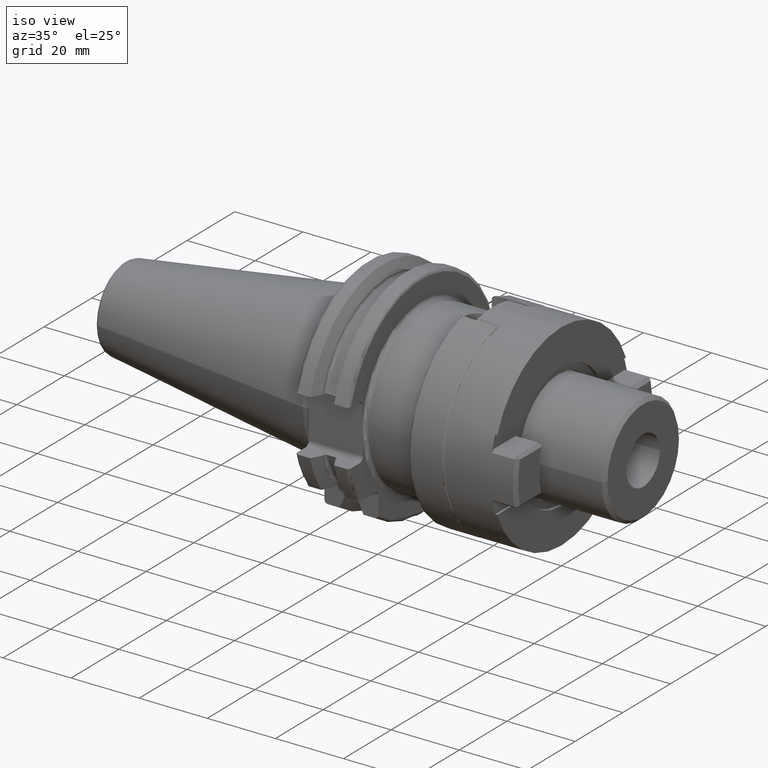
[diagram: clean part render]
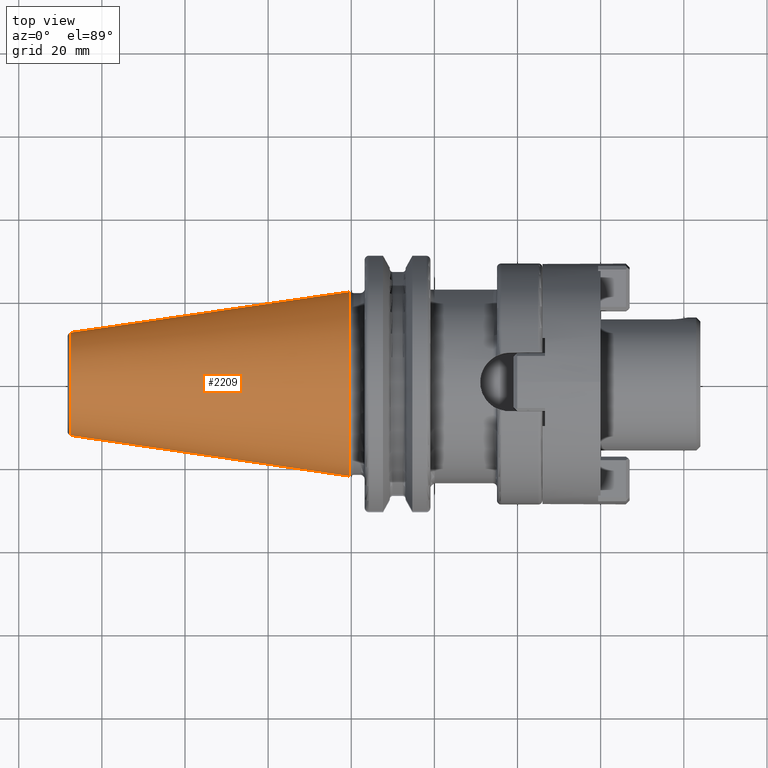
[diagram: tour spotlight — one face highlighted and labeled with its STEP entity id]
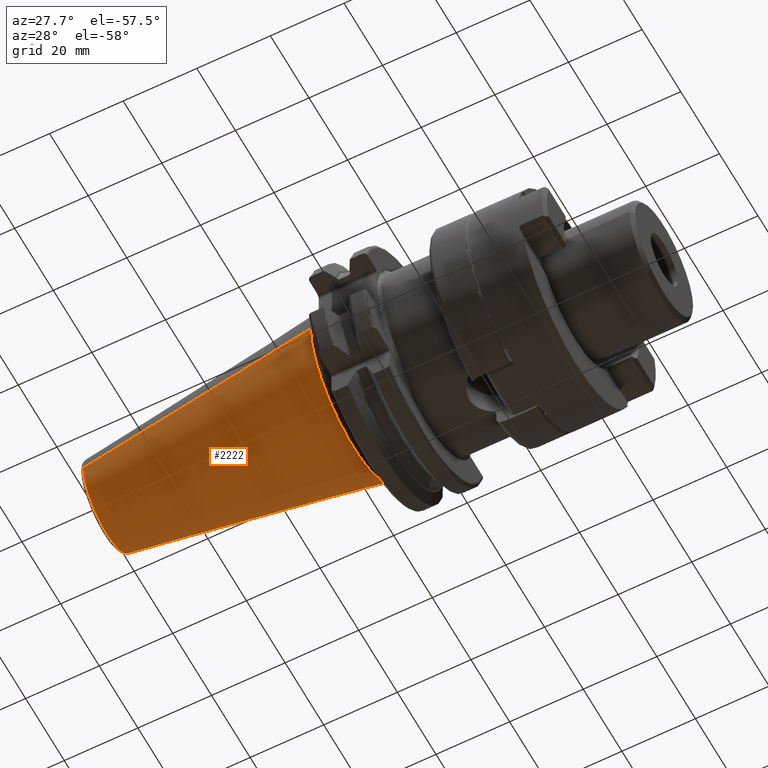
[diagram: tour spotlight — one face highlighted and labeled with its STEP entity id]
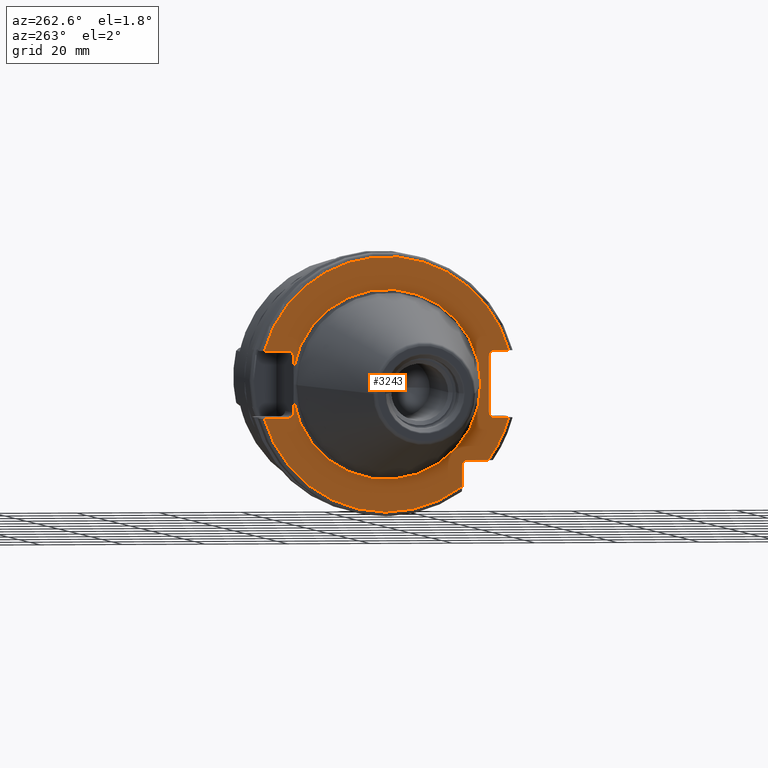
[diagram: tour spotlight — one face highlighted and labeled with its STEP entity id]
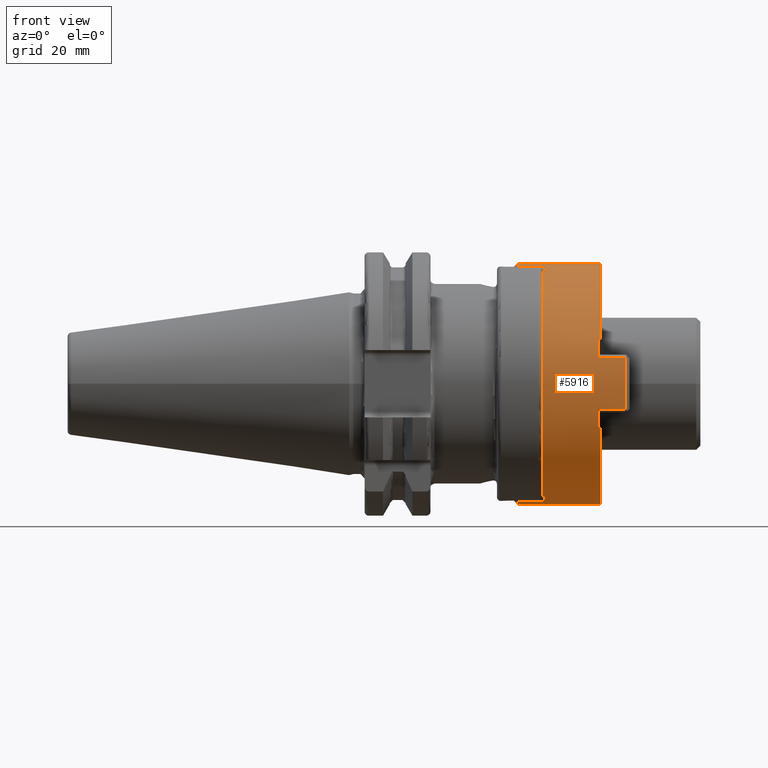
[diagram: tour spotlight — one face highlighted and labeled with its STEP entity id]
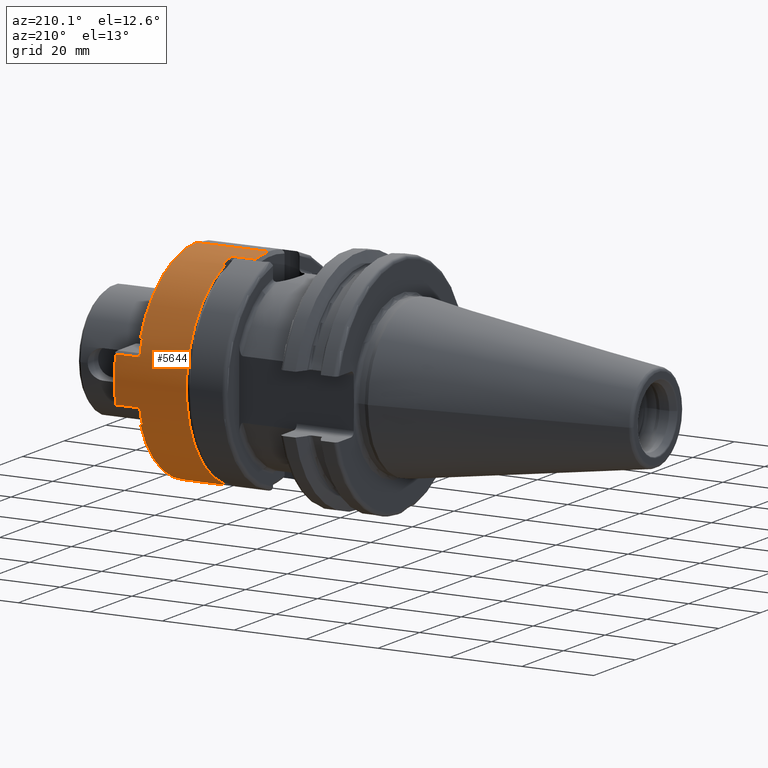
[diagram: tour spotlight — one face highlighted and labeled with its STEP entity id]
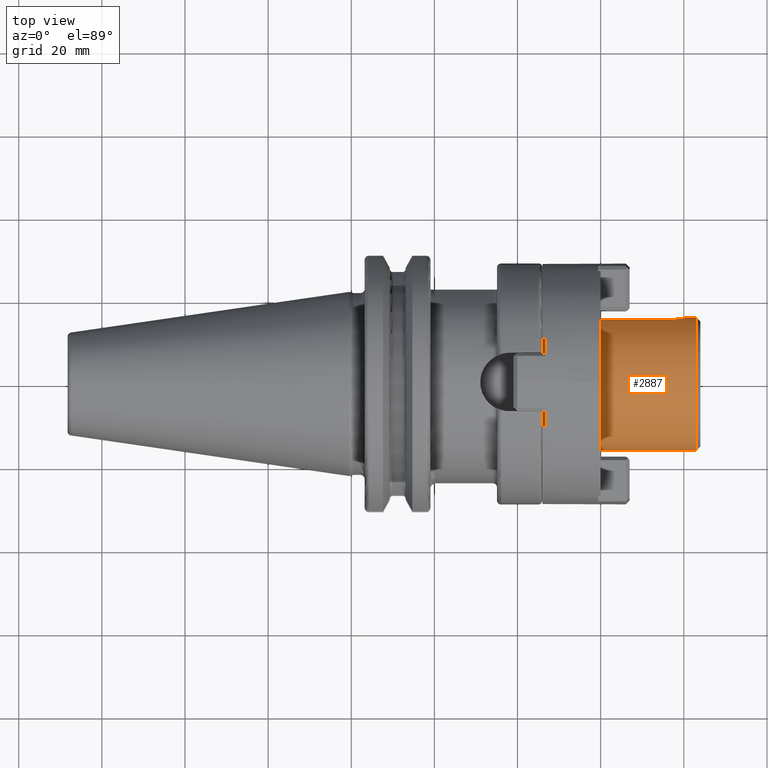
[diagram: tour spotlight — one face highlighted and labeled with its STEP entity id]
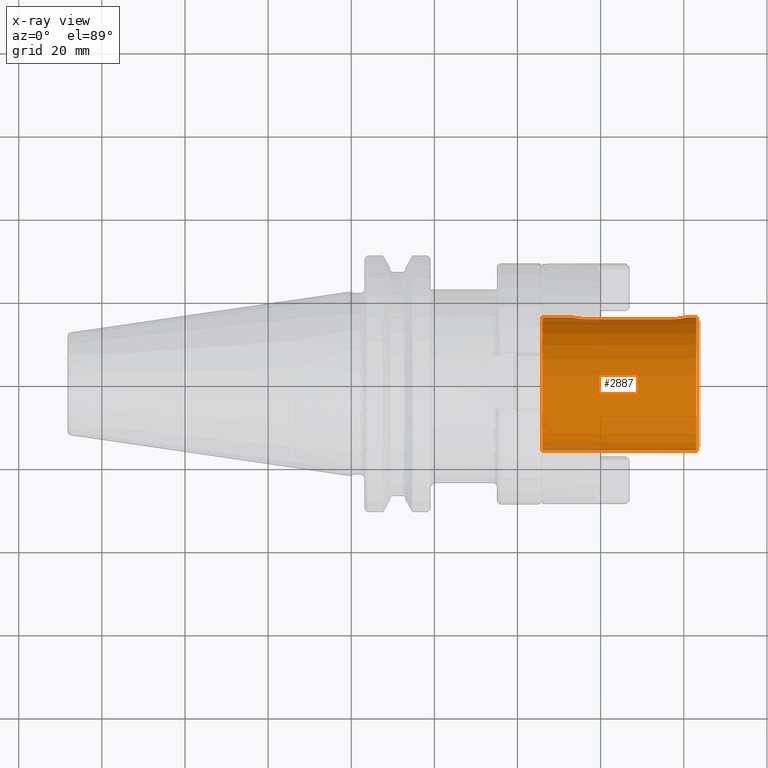
[diagram: x-ray of the same camera — body ghosted, this tour face saturated]
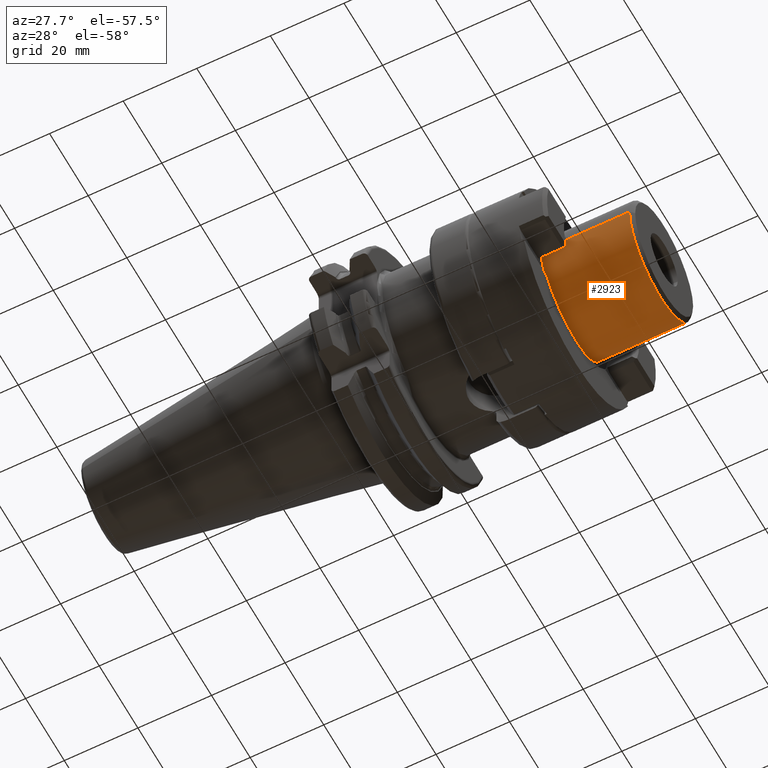
[diagram: tour spotlight — one face highlighted and labeled with its STEP entity id]
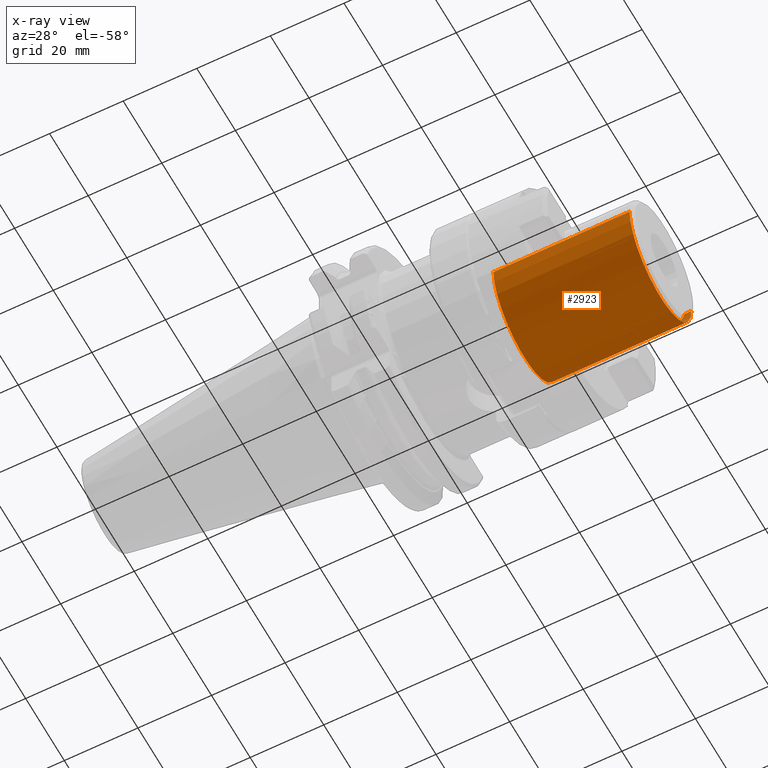
[diagram: x-ray of the same camera — body ghosted, this tour face saturated]
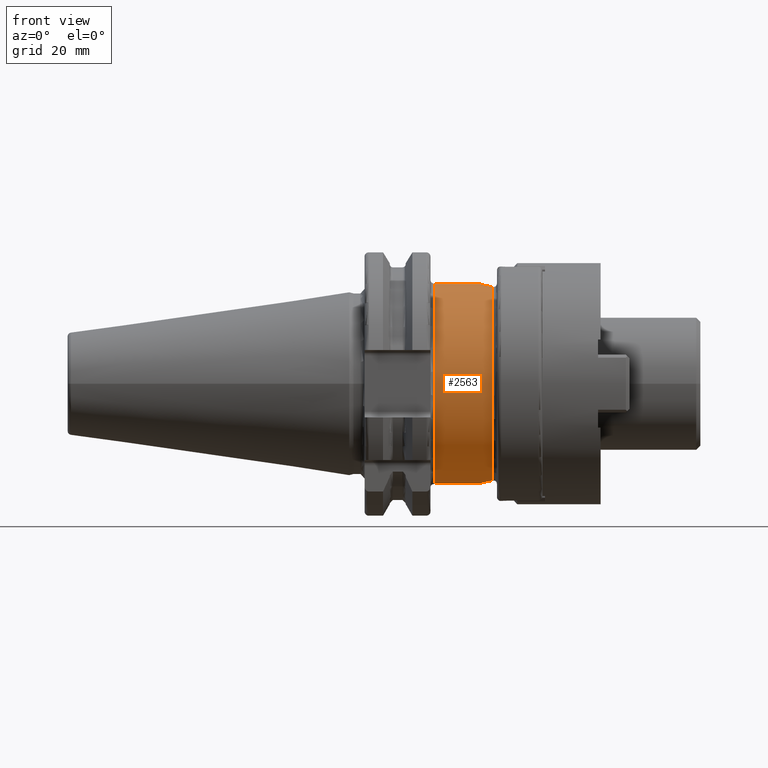
[diagram: tour spotlight — one face highlighted and labeled with its STEP entity id]
A machine part: a face-by-face anatomy tour. The part has 197 B-rep faces; the first image is the clean iso view, then the 8 largest visible faces are spotlighted one at a time (largest first), each with its STEP entity span.

Face 1 — top view, entity #2209. In plain terms, the highlighted conical surface has half-angle 8.298 deg.
Definition (entity closure, byte-faithful):
#37=CARTESIAN_POINT('',(-6.743710273571E1,0.E0,0.E0));
#38=DIRECTION('',(1.E0,0.E0,0.E0));
#39=DIRECTION('',(0.E0,1.E0,0.E0));
#40=AXIS2_PLACEMENT_3D('',#37,#38,#39);
#42=CARTESIAN_POINT('',(-4.896823332305E-1,0.E0,0.E0));
#43=DIRECTION('',(1.E0,0.E0,0.E0));
#44=DIRECTION('',(0.E0,1.E0,0.E0));
#45=AXIS2_PLACEMENT_3D('',#42,#43,#44);
#47=DIRECTION('',(-9.895312636440E-1,-1.443186691705E-1,0.E0));
#48=VECTOR('',#47,6.765568998391E1);
#49=CARTESIAN_POINT('',(-4.896823332305E-1,2.215358204157E1,0.E0));
#50=LINE('',#49,#48);
#51=DIRECTION('',(-9.895312636440E-1,1.443186691705E-1,0.E0));
#52=VECTOR('',#51,6.765568998391E1);
#53=CARTESIAN_POINT('',(-4.896823332305E-1,-2.215358204157E1,0.E0));
#54=LINE('',#53,#52);
#1798=CARTESIAN_POINT('',(-6.743710273571E1,1.238960290128E1,0.E0));
#1800=VERTEX_POINT('',#1798);
#1802=CARTESIAN_POINT('',(-6.743710273571E1,-1.238960290128E1,0.E0));
#1804=VERTEX_POINT('',#1802);
#1866=CARTESIAN_POINT('',(-4.896823332305E-1,2.215358204157E1,0.E0));
#1867=VERTEX_POINT('',#1866);
#1868=CARTESIAN_POINT('',(-4.896823332305E-1,-2.215358204157E1,0.E0));
#1869=VERTEX_POINT('',#1868);
#2195=CARTESIAN_POINT('',(-3.396339253447E1,0.E0,0.E0));
#2196=DIRECTION('',(1.E0,0.E0,0.E0));
#2197=DIRECTION('',(0.E0,-1.E0,0.E0));
#2198=AXIS2_PLACEMENT_3D('',#2195,#2196,#2197);
#2199=CONICAL_SURFACE('',#2198,1.727159247143E1,8.297826828206E0);
#2201=ORIENTED_EDGE('',*,*,#2200,.F.);
#2203=ORIENTED_EDGE('',*,*,#2202,.T.);
#2205=ORIENTED_EDGE('',*,*,#2204,.T.);
#2206=ORIENTED_EDGE('',*,*,#2188,.F.);
#2207=EDGE_LOOP('',(#2201,#2203,#2205,#2206));
#2208=FACE_OUTER_BOUND('',#2207,.F.);
#2209=ADVANCED_FACE('',(#2208),#2199,.T.);
#41=CIRCLE('',#40,1.238960290128E1);
#46=CIRCLE('',#45,2.215358204157E1);
#2188=EDGE_CURVE('',#1800,#1804,#41,.T.);
#2200=EDGE_CURVE('',#1867,#1800,#50,.T.);
#2202=EDGE_CURVE('',#1867,#1869,#46,.T.);
#2204=EDGE_CURVE('',#1869,#1804,#54,.T.);

Face 2 — auxiliary view, entity #2222. In plain terms, the highlighted conical surface has half-angle 8.298 deg.
Definition (entity closure, byte-faithful):
#32=CARTESIAN_POINT('',(-6.743710273571E1,0.E0,0.E0));
#33=DIRECTION('',(-1.E0,0.E0,0.E0));
#34=DIRECTION('',(0.E0,1.E0,0.E0));
#35=AXIS2_PLACEMENT_3D('',#32,#33,#34);
#47=DIRECTION('',(-9.895312636440E-1,-1.443186691705E-1,0.E0));
#48=VECTOR('',#47,6.765568998391E1);
#49=CARTESIAN_POINT('',(-4.896823332305E-1,2.215358204157E1,0.E0));
#50=LINE('',#49,#48);
#51=DIRECTION('',(-9.895312636440E-1,1.443186691705E-1,0.E0));
#52=VECTOR('',#51,6.765568998391E1);
#53=CARTESIAN_POINT('',(-4.896823332305E-1,-2.215358204157E1,0.E0));
#54=LINE('',#53,#52);
#55=CARTESIAN_POINT('',(-4.896823332305E-1,0.E0,0.E0));
#56=DIRECTION('',(-1.E0,0.E0,0.E0));
#57=DIRECTION('',(0.E0,1.E0,0.E0));
#58=AXIS2_PLACEMENT_3D('',#55,#56,#57);
#1798=CARTESIAN_POINT('',(-6.743710273571E1,1.238960290128E1,0.E0));
#1800=VERTEX_POINT('',#1798);
#1802=CARTESIAN_POINT('',(-6.743710273571E1,-1.238960290128E1,0.E0));
#1804=VERTEX_POINT('',#1802);
#1866=CARTESIAN_POINT('',(-4.896823332305E-1,2.215358204157E1,0.E0));
#1867=VERTEX_POINT('',#1866);
#1868=CARTESIAN_POINT('',(-4.896823332305E-1,-2.215358204157E1,0.E0));
#1869=VERTEX_POINT('',#1868);
#2210=CARTESIAN_POINT('',(-3.396339253447E1,0.E0,0.E0));
#2211=DIRECTION('',(1.E0,0.E0,0.E0));
#2212=DIRECTION('',(0.E0,-1.E0,0.E0));
#2213=AXIS2_PLACEMENT_3D('',#2210,#2211,#2212);
#2214=CONICAL_SURFACE('',#2213,1.727159247143E1,8.297826828206E0);
#2215=ORIENTED_EDGE('',*,*,#2200,.T.);
#2216=ORIENTED_EDGE('',*,*,#2177,.T.);
#2217=ORIENTED_EDGE('',*,*,#2204,.F.);
#2219=ORIENTED_EDGE('',*,*,#2218,.F.);
#2220=EDGE_LOOP('',(#2215,#2216,#2217,#2219));
#2221=FACE_OUTER_BOUND('',#2220,.F.);
#2222=ADVANCED_FACE('',(#2221),#2214,.T.);
#36=CIRCLE('',#35,1.238960290128E1);
#59=CIRCLE('',#58,2.215358204157E1);
#2177=EDGE_CURVE('',#1800,#1804,#36,.T.);
#2200=EDGE_CURVE('',#1867,#1800,#50,.T.);
#2204=EDGE_CURVE('',#1869,#1804,#54,.T.);
#2218=EDGE_CURVE('',#1867,#1869,#59,.T.);

Face 3 — auxiliary view, entity #3243. In plain terms, the highlighted planar face has unit normal (1, 0, 0).
Definition (entity closure, byte-faithful):
#105=CARTESIAN_POINT('',(3.2E0,2.255E1,-3.842281223440E0));
#117=CARTESIAN_POINT('',(3.2E0,0.E0,0.E0));
#118=DIRECTION('',(-1.E0,0.E0,0.E0));
#119=DIRECTION('',(0.E0,9.857923497268E-1,-1.679685780739E-1));
#120=AXIS2_PLACEMENT_3D('',#117,#118,#119);
#142=CARTESIAN_POINT('',(3.2E0,2.39E1,-6.75E0));
#143=DIRECTION('',(1.E0,0.E0,0.E0));
#144=DIRECTION('',(0.E0,-1.E0,0.E0));
#145=AXIS2_PLACEMENT_3D('',#142,#143,#144);
#199=CARTESIAN_POINT('',(3.2E0,2.39E1,6.75E0));
#200=DIRECTION('',(1.E0,0.E0,0.E0));
#201=DIRECTION('',(0.E0,0.E0,1.E0));
#202=AXIS2_PLACEMENT_3D('',#199,#200,#201);
#244=CARTESIAN_POINT('',(3.2E0,-2.62E1,6.75E0));
#245=DIRECTION('',(1.E0,0.E0,0.E0));
#246=DIRECTION('',(0.E0,1.E0,0.E0));
#247=AXIS2_PLACEMENT_3D('',#244,#245,#246);
#888=CARTESIAN_POINT('',(3.2E0,-2.62E1,-6.75E0));
#889=DIRECTION('',(1.E0,0.E0,0.E0));
#890=DIRECTION('',(0.E0,0.E0,-1.E0));
#891=AXIS2_PLACEMENT_3D('',#888,#889,#890);
#955=DIRECTION('',(0.E0,0.E0,-1.E0));
#956=VECTOR('',#955,2.907718776560E0);
#957=CARTESIAN_POINT('',(3.2E0,2.255E1,6.75E0));
#958=LINE('',#957,#956);
#959=DIRECTION('',(0.E0,-1.E0,0.E0));
#960=VECTOR('',#959,5.776950757280E0);
#961=CARTESIAN_POINT('',(3.2E0,2.967695075728E1,8.1E0));
#962=LINE('',#961,#960);
#963=CARTESIAN_POINT('',(3.2E0,0.E0,0.E0));
#964=DIRECTION('',(1.E0,0.E0,0.E0));
#965=DIRECTION('',(0.E0,9.647119303464E-1,2.633075985372E-1));
#966=AXIS2_PLACEMENT_3D('',#963,#964,#965);
#968=DIRECTION('',(0.E0,1.E0,0.E0));
#969=VECTOR('',#968,3.476950757280E0);
#970=CARTESIAN_POINT('',(3.2E0,-2.967695075728E1,8.1E0));
#971=LINE('',#970,#969);
#972=DIRECTION('',(0.E0,0.E0,1.E0));
#973=VECTOR('',#972,1.35E1);
#974=CARTESIAN_POINT('',(3.2E0,-2.485E1,-6.75E0));
#975=LINE('',#974,#973);
#976=DIRECTION('',(0.E0,1.E0,0.E0));
#977=VECTOR('',#976,3.476950757280E0);
#978=CARTESIAN_POINT('',(3.2E0,-2.967695075728E1,-8.1E0));
#979=LINE('',#978,#977);
#980=CARTESIAN_POINT('',(3.2E0,0.E0,0.E0));
#981=DIRECTION('',(-1.E0,0.E0,0.E0));
#982=DIRECTION('',(0.E0,-8.026089992512E-1,-5.965054855750E-1));
#983=AXIS2_PLACEMENT_3D('',#980,#981,#982);
#985=DIRECTION('',(0.E0,-1.E0,0.E0));
#986=VECTOR('',#985,4.990259339464E0);
#987=CARTESIAN_POINT('',(3.2E0,-1.97E1,-1.835E1));
#988=LINE('',#987,#986);
#989=DIRECTION('',(0.E0,0.E0,1.E0));
#990=VECTOR('',#989,4.990259339464E0);
#991=CARTESIAN_POINT('',(3.2E0,-1.835E1,-2.469025933946E1));
#992=LINE('',#991,#990);
#993=CARTESIAN_POINT('',(3.2E0,0.E0,0.E0));
#994=DIRECTION('',(-1.E0,0.E0,0.E0));
#995=DIRECTION('',(0.E0,9.647119303464E-1,-2.633075985372E-1));
#996=AXIS2_PLACEMENT_3D('',#993,#994,#995);
#998=DIRECTION('',(0.E0,-1.E0,0.E0));
#999=VECTOR('',#998,5.776950757280E0);
#1000=CARTESIAN_POINT('',(3.2E0,2.967695075728E1,-8.1E0));
#1001=LINE('',#1000,#999);
#1002=DIRECTION('',(0.E0,0.E0,-1.E0));
#1003=VECTOR('',#1002,2.907718776560E0);
#1004=CARTESIAN_POINT('',(3.2E0,2.255E1,-3.842281223440E0));
#1005=LINE('',#1004,#1003);
#1015=CARTESIAN_POINT('',(3.2E0,2.967695075728E1,8.1E0));
#1022=CARTESIAN_POINT('',(3.2E0,-2.967695075728E1,8.1E0));
#1442=CARTESIAN_POINT('',(3.2E0,2.967695075728E1,-8.1E0));
#1478=CARTESIAN_POINT('',(3.2E0,-2.967695075728E1,-8.1E0));
#1505=CARTESIAN_POINT('',(3.2E0,-1.97E1,-1.97E1));
#1506=DIRECTION('',(1.E0,0.E0,0.E0));
#1507=DIRECTION('',(0.E0,1.E0,0.E0));
#1508=AXIS2_PLACEMENT_3D('',#1505,#1506,#1507);
#1576=CARTESIAN_POINT('',(3.2E0,2.255E1,3.842281223440E0));
#1587=CARTESIAN_POINT('',(3.2E0,0.E0,0.E0));
#1588=DIRECTION('',(1.E0,0.E0,0.E0));
#1589=DIRECTION('',(0.E0,9.857923497268E-1,1.679685780739E-1));
#1590=AXIS2_PLACEMENT_3D('',#1587,#1588,#1589);
#1810=CARTESIAN_POINT('',(3.2E0,-2.2875E1,0.E0));
#1812=VERTEX_POINT('',#1810);
#1952=VERTEX_POINT('',#1576);
#1954=VERTEX_POINT('',#105);
#1957=VERTEX_POINT('',#1015);
#1958=VERTEX_POINT('',#1022);
#1961=VERTEX_POINT('',#1442);
#1962=VERTEX_POINT('',#1478);
#1977=CARTESIAN_POINT('',(3.2E0,-1.835E1,-2.469025933946E1));
#1978=VERTEX_POINT('',#1977);
#1980=CARTESIAN_POINT('',(3.2E0,2.39E1,-8.1E0));
#1982=VERTEX_POINT('',#1980);
#1984=CARTESIAN_POINT('',(3.2E0,2.39E1,8.1E0));
#1986=VERTEX_POINT('',#1984);
#1988=CARTESIAN_POINT('',(3.2E0,-2.485E1,-6.75E0));
#1990=VERTEX_POINT('',#1988);
#1992=CARTESIAN_POINT('',(3.2E0,-2.62E1,-8.1E0));
#1994=VERTEX_POINT('',#1992);
#1996=CARTESIAN_POINT('',(3.2E0,-2.62E1,8.1E0));
#1998=VERTEX_POINT('',#1996);
#2000=CARTESIAN_POINT('',(3.2E0,-2.485E1,6.75E0));
#2002=VERTEX_POINT('',#2000);
#2009=CARTESIAN_POINT('',(3.2E0,2.255E1,6.75E0));
#2010=VERTEX_POINT('',#2009);
#2011=CARTESIAN_POINT('',(3.2E0,2.255E1,-6.75E0));
#2012=VERTEX_POINT('',#2011);
#2013=CARTESIAN_POINT('',(3.2E0,-1.97E1,-1.835E1));
#2014=CARTESIAN_POINT('',(3.2E0,-2.469025933946E1,-1.835E1));
#2015=VERTEX_POINT('',#2013);
#2016=VERTEX_POINT('',#2014);
#2017=CARTESIAN_POINT('',(3.2E0,-1.835E1,-1.97E1));
#2018=VERTEX_POINT('',#2017);
#3210=CARTESIAN_POINT('',(3.2E0,0.E0,0.E0));
#3211=DIRECTION('',(1.E0,0.E0,0.E0));
#3212=DIRECTION('',(0.E0,-1.E0,0.E0));
#3213=AXIS2_PLACEMENT_3D('',#3210,#3211,#3212);
#3214=PLANE('',#3213);
#3215=ORIENTED_EDGE('',*,*,#2323,.F.);
#3216=ORIENTED_EDGE('',*,*,#2409,.F.);
#3217=ORIENTED_EDGE('',*,*,#2444,.F.);
#3219=ORIENTED_EDGE('',*,*,#3218,.T.);
#3220=ORIENTED_EDGE('',*,*,#2470,.T.);
#3221=ORIENTED_EDGE('',*,*,#2506,.F.);
#3222=ORIENTED_EDGE('',*,*,#2522,.F.);
#3223=ORIENTED_EDGE('',*,*,#3109,.F.);
#3224=ORIENTED_EDGE('',*,*,#3143,.F.);
#3226=ORIENTED_EDGE('',*,*,#3225,.F.);
#3228=ORIENTED_EDGE('',*,*,#3227,.F.);
#3230=ORIENTED_EDGE('',*,*,#3229,.F.);
#3232=ORIENTED_EDGE('',*,*,#3231,.F.);
#3234=ORIENTED_EDGE('',*,*,#3233,.F.);
#3235=ORIENTED_EDGE('',*,*,#3183,.T.);
#3236=ORIENTED_EDGE('',*,*,#2341,.F.);
#3237=ORIENTED_EDGE('',*,*,#2328,.F.);
#3238=ORIENTED_EDGE('',*,*,#2291,.T.);
#3240=ORIENTED_EDGE('',*,*,#3239,.F.);
#3241=EDGE_LOOP('',(#3215,#3216,#3217,#3219,#3220,#3221,#3222,#3223,#3224,#3226,
#3228,#3230,#3232,#3234,#3235,#3236,#3237,#3238,#3240));
#3242=FACE_OUTER_BOUND('',#3241,.F.);
#3243=ADVANCED_FACE('',(#3242),#3214,.F.);
#121=CIRCLE('',#120,2.2875E1);
#146=CIRCLE('',#145,1.35E0);
#203=CIRCLE('',#202,1.35E0);
#248=CIRCLE('',#247,1.35E0);
#892=CIRCLE('',#891,1.35E0);
#967=CIRCLE('',#966,3.07625E1);
#984=CIRCLE('',#983,3.07625E1);
#997=CIRCLE('',#996,3.07625E1);
#1509=CIRCLE('',#1508,1.35E0);
#1591=CIRCLE('',#1590,2.2875E1);
#2291=EDGE_CURVE('',#1954,#1812,#121,.T.);
#2323=EDGE_CURVE('',#2010,#1952,#958,.T.);
#2328=EDGE_CURVE('',#1954,#2012,#1005,.T.);
#2341=EDGE_CURVE('',#2012,#1982,#146,.T.);
#2409=EDGE_CURVE('',#1986,#2010,#203,.T.);
#2444=EDGE_CURVE('',#1957,#1986,#962,.T.);
#2470=EDGE_CURVE('',#1958,#1998,#971,.T.);
#2506=EDGE_CURVE('',#2002,#1998,#248,.T.);
#2522=EDGE_CURVE('',#1990,#2002,#975,.T.);
#3109=EDGE_CURVE('',#1994,#1990,#892,.T.);
#3143=EDGE_CURVE('',#1962,#1994,#979,.T.);
#3183=EDGE_CURVE('',#1961,#1982,#1001,.T.);
#3218=EDGE_CURVE('',#1957,#1958,#967,.T.);
#3225=EDGE_CURVE('',#2016,#1962,#984,.T.);
#3227=EDGE_CURVE('',#2015,#2016,#988,.T.);
#3229=EDGE_CURVE('',#2018,#2015,#1509,.T.);
#3231=EDGE_CURVE('',#1978,#2018,#992,.T.);
#3233=EDGE_CURVE('',#1961,#1978,#997,.T.);
#3239=EDGE_CURVE('',#1952,#1812,#1591,.T.);

Face 4 — front view, entity #5916. In plain terms, the highlighted cylindrical surface (partial cylindrical patch) has radius 29 mm, axis along (1, 0, 0).
Definition (entity closure, byte-faithful):
#4356=DIRECTION('',(1.342815094146E-12,1.E0,-1.127559325998E-12));
#4357=VECTOR('',#4356,2.006250000003E1);
#4358=CARTESIAN_POINT('',(2.899999999997E1,-6.062500000027E0,
2.262521045359E-11));
#4359=LINE('',#4358,#4357);
#4597=DIRECTION('',(6.185587793484E-14,1.E0,0.E0));
#4598=VECTOR('',#4597,6.6625E0);
#4599=CARTESIAN_POINT('',(-2.831474527892E1,-6.0625E0,6.266992882562E0));
#4600=LINE('',#4599,#4598);
#4601=CARTESIAN_POINT('',(0.E0,-6.0625E0,0.E0));
#4602=DIRECTION('',(0.E0,-1.E0,0.E0));
#4603=DIRECTION('',(-9.763705268592E-1,0.E0,2.161032028470E-1));
#4604=AXIS2_PLACEMENT_3D('',#4601,#4602,#4603);
#4606=DIRECTION('',(-1.319971477221E-12,1.E0,1.457055303772E-12));
#4607=VECTOR('',#4606,2.006250000003E1);
#4608=CARTESIAN_POINT('',(-2.899999999997E1,-6.062500000026E0,
-2.923217120667E-11));
#4609=LINE('',#4608,#4607);
#4610=CARTESIAN_POINT('',(0.E0,1.4E1,0.E0));
#4611=DIRECTION('',(0.E0,1.E0,0.E0));
#4612=DIRECTION('',(-1.E0,0.E0,0.E0));
#4613=AXIS2_PLACEMENT_3D('',#4610,#4611,#4612);
#4615=DIRECTION('',(0.E0,1.E0,0.E0));
#4616=VECTOR('',#4615,6.E-1);
#4617=CARTESIAN_POINT('',(-1.05725E1,1.34E1,2.700411531137E1));
#4618=LINE('',#4617,#4616);
#4619=DIRECTION('',(-2.286429389008E-9,-1.E0,1.033025871003E-8));
#4620=VECTOR('',#4619,6.662499859018E0);
#4621=CARTESIAN_POINT('',(-6.266992867329E0,2.006249985902E1,2.831474521009E1));
#4622=LINE('',#4621,#4620);
#4623=DIRECTION('',(2.256645089311E-9,9.999999999959E-1,-2.869937073831E-6));
#4624=VECTOR('',#4623,6.662519618770E0);
#4625=CARTESIAN_POINT('',(6.266992882562E0,1.34E1,2.831474527892E1));
#4626=LINE('',#4625,#4624);
#4627=DIRECTION('',(0.E0,1.E0,-1.184237892934E-14));
#4628=VECTOR('',#4627,6.E-1);
#4629=CARTESIAN_POINT('',(1.05725E1,1.34E1,2.700411531137E1));
#4630=LINE('',#4629,#4628);
#4631=CARTESIAN_POINT('',(0.E0,1.4E1,0.E0));
#4632=DIRECTION('',(0.E0,1.E0,0.E0));
#4633=DIRECTION('',(3.645689655172E-1,0.E0,9.311763900474E-1));
#4634=AXIS2_PLACEMENT_3D('',#4631,#4632,#4633);
#4636=CARTESIAN_POINT('',(0.E0,-6.0625E0,0.E0));
#4637=DIRECTION('',(0.E0,-1.E0,0.E0));
#4638=DIRECTION('',(1.E0,0.E0,0.E0));
#4639=AXIS2_PLACEMENT_3D('',#4636,#4637,#4638);
#4641=DIRECTION('',(0.E0,-1.E0,0.E0));
#4642=VECTOR('',#4641,6.6625E0);
#4643=CARTESIAN_POINT('',(2.831474527892E1,6.E-1,6.266992882562E0));
#4644=LINE('',#4643,#4642);
#4645=DIRECTION('',(0.E0,1.E0,0.E0));
#4646=VECTOR('',#4645,6.E-1);
#4647=CARTESIAN_POINT('',(2.700411531137E1,0.E0,1.05725E1));
#4648=LINE('',#4647,#4646);
#4649=CARTESIAN_POINT('',(0.E0,0.E0,0.E0));
#4650=DIRECTION('',(0.E0,-1.E0,0.E0));
#4651=DIRECTION('',(9.311763900474E-1,0.E0,3.645689655172E-1));
#4652=AXIS2_PLACEMENT_3D('',#4649,#4650,#4651);
#4654=DIRECTION('',(-1.184237892934E-14,1.E0,0.E0));
#4655=VECTOR('',#4654,6.E-1);
#4656=CARTESIAN_POINT('',(-2.700411531137E1,0.E0,1.05725E1));
#4657=LINE('',#4656,#4655);
#4839=CARTESIAN_POINT('',(0.E0,1.34E1,0.E0));
#4840=DIRECTION('',(0.E0,-1.E0,0.E0));
#4841=DIRECTION('',(3.645689655172E-1,0.E0,9.311763900474E-1));
#4842=AXIS2_PLACEMENT_3D('',#4839,#4840,#4841);
#4985=CARTESIAN_POINT('',(0.E0,1.34E1,0.E0));
#4986=DIRECTION('',(0.E0,-1.E0,0.E0));
#4987=DIRECTION('',(-2.161032028470E-1,0.E0,9.763705268592E-1));
#4988=AXIS2_PLACEMENT_3D('',#4985,#4986,#4987);
#5081=CARTESIAN_POINT('',(7.102470092939E-6,2.006250050754E1,
-2.878763164205E-5));
#5082=DIRECTION('',(0.E0,-1.E0,0.E0));
#5083=DIRECTION('',(2.161027599205E-1,0.E0,9.763706248934E-1));
#5084=AXIS2_PLACEMENT_3D('',#5081,#5082,#5083);
#5198=CARTESIAN_POINT('',(0.E0,6.E-1,0.E0));
#5199=DIRECTION('',(0.E0,1.E0,0.E0));
#5200=DIRECTION('',(9.311763900474E-1,0.E0,3.645689655172E-1));
#5201=AXIS2_PLACEMENT_3D('',#5198,#5199,#5200);
#5216=CARTESIAN_POINT('',(0.E0,6.E-1,0.E0));
#5217=DIRECTION('',(0.E0,1.E0,0.E0));
#5218=DIRECTION('',(-9.763705268592E-1,0.E0,2.161032028470E-1));
#5219=AXIS2_PLACEMENT_3D('',#5216,#5217,#5218);
#5264=CARTESIAN_POINT('',(2.9E1,1.4E1,0.E0));
#5266=VERTEX_POINT('',#5264);
#5269=CARTESIAN_POINT('',(-2.9E1,1.4E1,0.E0));
#5271=VERTEX_POINT('',#5269);
#5272=CARTESIAN_POINT('',(1.05725E1,1.4E1,2.700411531137E1));
#5273=VERTEX_POINT('',#5272);
#5274=CARTESIAN_POINT('',(-1.05725E1,1.4E1,2.700411531137E1));
#5275=VERTEX_POINT('',#5274);
#5300=CARTESIAN_POINT('',(1.05725E1,1.34E1,2.700411531137E1));
#5301=VERTEX_POINT('',#5300);
#5302=CARTESIAN_POINT('',(-1.05725E1,1.34E1,2.700411531137E1));
#5303=VERTEX_POINT('',#5302);
#5312=CARTESIAN_POINT('',(-2.700411531137E1,6.E-1,1.05725E1));
#5314=VERTEX_POINT('',#5312);
#5317=CARTESIAN_POINT('',(2.700411531137E1,6.E-1,1.05725E1));
#5319=VERTEX_POINT('',#5317);
#5320=CARTESIAN_POINT('',(-2.700411531137E1,0.E0,1.05725E1));
#5322=VERTEX_POINT('',#5320);
#5325=CARTESIAN_POINT('',(2.700411531137E1,0.E0,1.05725E1));
#5327=VERTEX_POINT('',#5325);
#5372=CARTESIAN_POINT('',(6.266993344859E0,2.006250050754E1,2.831474736761E1));
#5373=CARTESIAN_POINT('',(-6.266992681481E0,2.006250050754E1,2.831474437042E1));
#5374=VERTEX_POINT('',#5372);
#5375=VERTEX_POINT('',#5373);
#5412=CARTESIAN_POINT('',(6.266992882562E0,1.34E1,2.831474527892E1));
#5413=VERTEX_POINT('',#5412);
#5422=CARTESIAN_POINT('',(-6.266992882562E0,1.34E1,2.831474527892E1));
#5423=VERTEX_POINT('',#5422);
#5437=CARTESIAN_POINT('',(-2.831474527892E1,-6.0625E0,6.266992882562E0));
#5438=CARTESIAN_POINT('',(-2.831474527892E1,6.E-1,6.266992882562E0));
#5439=VERTEX_POINT('',#5437);
#5440=VERTEX_POINT('',#5438);
#5447=CARTESIAN_POINT('',(-2.9E1,-6.0625E0,0.E0));
#5449=VERTEX_POINT('',#5447);
#5471=CARTESIAN_POINT('',(2.831474527892E1,6.E-1,6.266992882562E0));
#5472=CARTESIAN_POINT('',(2.831474527892E1,-6.0625E0,6.266992882562E0));
#5473=VERTEX_POINT('',#5471);
#5474=VERTEX_POINT('',#5472);
#5477=CARTESIAN_POINT('',(2.9E1,-6.0625E0,0.E0));
#5478=VERTEX_POINT('',#5477);
#5873=CARTESIAN_POINT('',(0.E0,-6.9625E0,0.E0));
#5874=DIRECTION('',(0.E0,1.E0,0.E0));
#5875=DIRECTION('',(1.E0,0.E0,0.E0));
#5876=AXIS2_PLACEMENT_3D('',#5873,#5874,#5875);
#5877=CYLINDRICAL_SURFACE('',#5876,2.9E1);
#5878=ORIENTED_EDGE('',*,*,#5866,.F.);
#5879=ORIENTED_EDGE('',*,*,#5585,.T.);
#5880=ORIENTED_EDGE('',*,*,#5640,.T.);
#5882=ORIENTED_EDGE('',*,*,#5881,.T.);
#5884=ORIENTED_EDGE('',*,*,#5883,.F.);
#5886=ORIENTED_EDGE('',*,*,#5885,.F.);
#5888=ORIENTED_EDGE('',*,*,#5887,.F.);
#5890=ORIENTED_EDGE('',*,*,#5889,.F.);
#5892=ORIENTED_EDGE('',*,*,#5891,.F.);
#5894=ORIENTED_EDGE('',*,*,#5893,.F.);
#5896=ORIENTED_EDGE('',*,*,#5895,.T.);
#5898=ORIENTED_EDGE('',*,*,#5897,.T.);
#5899=ORIENTED_EDGE('',*,*,#5620,.F.);
#5901=ORIENTED_EDGE('',*,*,#5900,.T.);
#5903=ORIENTED_EDGE('',*,*,#5902,.F.);
#5905=ORIENTED_EDGE('',*,*,#5904,.F.);
#5907=ORIENTED_EDGE('',*,*,#5906,.F.);
#5909=ORIENTED_EDGE('',*,*,#5908,.T.);
#5911=ORIENTED_EDGE('',*,*,#5910,.T.);
#5913=ORIENTED_EDGE('',*,*,#5912,.F.);
#5914=EDGE_LOOP('',(#5878,#5879,#5880,#5882,#5884,#5886,#5888,#5890,#5892,#5894,
#5896,#5898,#5899,#5901,#5903,#5905,#5907,#5909,#5911,#5913));
#5915=FACE_OUTER_BOUND('',#5914,.F.);
#5916=ADVANCED_FACE('',(#5915),#5877,.T.);
#4605=CIRCLE('',#4604,2.9E1);
#4614=CIRCLE('',#4613,2.9E1);
#4635=CIRCLE('',#4634,2.9E1);
#4640=CIRCLE('',#4639,2.9E1);
#4653=CIRCLE('',#4652,2.9E1);
#4843=CIRCLE('',#4842,2.9E1);
#4989=CIRCLE('',#4988,2.9E1);
#5085=CIRCLE('',#5084,2.900002871178E1);
#5202=CIRCLE('',#5201,2.9E1);
#5220=CIRCLE('',#5219,2.9E1);
#5585=EDGE_CURVE('',#5439,#5449,#4605,.T.);
#5620=EDGE_CURVE('',#5478,#5266,#4359,.T.);
#5640=EDGE_CURVE('',#5449,#5271,#4609,.T.);
#5866=EDGE_CURVE('',#5439,#5440,#4600,.T.);
#5881=EDGE_CURVE('',#5271,#5275,#4614,.T.);
#5883=EDGE_CURVE('',#5303,#5275,#4618,.T.);
#5885=EDGE_CURVE('',#5423,#5303,#4989,.T.);
#5887=EDGE_CURVE('',#5375,#5423,#4622,.T.);
#5889=EDGE_CURVE('',#5374,#5375,#5085,.T.);
#5891=EDGE_CURVE('',#5413,#5374,#4626,.T.);
#5893=EDGE_CURVE('',#5301,#5413,#4843,.T.);
#5895=EDGE_CURVE('',#5301,#5273,#4630,.T.);
#5897=EDGE_CURVE('',#5273,#5266,#4635,.T.);
#5900=EDGE_CURVE('',#5478,#5474,#4640,.T.);
#5902=EDGE_CURVE('',#5473,#5474,#4644,.T.);
#5904=EDGE_CURVE('',#5319,#5473,#5202,.T.);
#5906=EDGE_CURVE('',#5327,#5319,#4648,.T.);
#5908=EDGE_CURVE('',#5327,#5322,#4653,.T.);
#5910=EDGE_CURVE('',#5322,#5314,#4657,.T.);
#5912=EDGE_CURVE('',#5440,#5314,#5220,.T.);

Face 5 — auxiliary view, entity #5644. In plain terms, the highlighted cylindrical surface (partial cylindrical patch) has radius 29 mm, axis along (1, 0, 0).
Definition (entity closure, byte-faithful):
#4325=CARTESIAN_POINT('',(0.E0,-6.0625E0,0.E0));
#4326=DIRECTION('',(0.E0,-1.E0,0.E0));
#4327=DIRECTION('',(-1.E0,0.E0,0.E0));
#4328=AXIS2_PLACEMENT_3D('',#4325,#4326,#4327);
#4330=DIRECTION('',(0.E0,-1.E0,0.E0));
#4331=VECTOR('',#4330,6.6625E0);
#4332=CARTESIAN_POINT('',(-2.831474527892E1,6.E-1,-6.266992882562E0));
#4333=LINE('',#4332,#4331);
#4334=DIRECTION('',(0.E0,1.E0,0.E0));
#4335=VECTOR('',#4334,6.E-1);
#4336=CARTESIAN_POINT('',(-2.700411531137E1,0.E0,-1.05725E1));
#4337=LINE('',#4336,#4335);
#4338=CARTESIAN_POINT('',(0.E0,0.E0,0.E0));
#4339=DIRECTION('',(0.E0,-1.E0,0.E0));
#4340=DIRECTION('',(-9.311763900474E-1,0.E0,-3.645689655172E-1));
#4341=AXIS2_PLACEMENT_3D('',#4338,#4339,#4340);
#4343=DIRECTION('',(0.E0,1.E0,0.E0));
#4344=VECTOR('',#4343,6.E-1);
#4345=CARTESIAN_POINT('',(2.700411531137E1,0.E0,-1.05725E1));
#4346=LINE('',#4345,#4344);
#4347=DIRECTION('',(8.425197166986E-14,1.E0,0.E0));
#4348=VECTOR('',#4347,6.662500000001E0);
#4349=CARTESIAN_POINT('',(2.831474527892E1,-6.062500000001E0,
-6.266992882562E0));
#4350=LINE('',#4349,#4348);
#4351=CARTESIAN_POINT('',(0.E0,-6.0625E0,0.E0));
#4352=DIRECTION('',(0.E0,-1.E0,0.E0));
#4353=DIRECTION('',(9.763705268592E-1,0.E0,-2.161032028470E-1));
#4354=AXIS2_PLACEMENT_3D('',#4351,#4352,#4353);
#4356=DIRECTION('',(1.342815094146E-12,1.E0,-1.127559325998E-12));
#4357=VECTOR('',#4356,2.006250000003E1);
#4358=CARTESIAN_POINT('',(2.899999999997E1,-6.062500000027E0,
2.262521045359E-11));
#4359=LINE('',#4358,#4357);
#4360=CARTESIAN_POINT('',(0.E0,1.4E1,0.E0));
#4361=DIRECTION('',(0.E0,1.E0,0.E0));
#4362=DIRECTION('',(1.E0,0.E0,0.E0));
#4363=AXIS2_PLACEMENT_3D('',#4360,#4361,#4362);
#4365=DIRECTION('',(0.E0,1.E0,0.E0));
#4366=VECTOR('',#4365,6.E-1);
#4367=CARTESIAN_POINT('',(1.05725E1,1.34E1,-2.700411531137E1));
#4368=LINE('',#4367,#4366);
#4369=DIRECTION('',(-2.408005148702E-9,-1.E0,1.087955390901E-8));
#4370=VECTOR('',#4369,6.662500148479E0);
#4371=CARTESIAN_POINT('',(6.266992898606E0,2.006250014848E1,-2.831474535140E1));
#4372=LINE('',#4371,#4370);
#4373=DIRECTION('',(2.731163436107E-9,9.999999999954E-1,-3.020211818807E-6));
#4374=VECTOR('',#4373,6.662479354316E0);
#4375=CARTESIAN_POINT('',(-6.266992882562E0,1.34E1,-2.831474527892E1));
#4376=LINE('',#4375,#4374);
#4377=DIRECTION('',(0.E0,1.E0,0.E0));
#4378=VECTOR('',#4377,6.E-1);
#4379=CARTESIAN_POINT('',(-1.05725E1,1.34E1,-2.700411531137E1));
#4380=LINE('',#4379,#4378);
#4381=CARTESIAN_POINT('',(0.E0,1.4E1,0.E0));
#4382=DIRECTION('',(0.E0,1.E0,0.E0));
#4383=DIRECTION('',(-3.645689655172E-1,0.E0,-9.311763900474E-1));
#4384=AXIS2_PLACEMENT_3D('',#4381,#4382,#4383);
#4453=CARTESIAN_POINT('',(0.E0,6.E-1,0.E0));
#4454=DIRECTION('',(0.E0,1.E0,0.E0));
#4455=DIRECTION('',(-9.311763900474E-1,0.E0,-3.645689655172E-1));
#4456=AXIS2_PLACEMENT_3D('',#4453,#4454,#4455);
#4458=CARTESIAN_POINT('',(0.E0,6.E-1,0.E0));
#4459=DIRECTION('',(0.E0,1.E0,0.E0));
#4460=DIRECTION('',(9.763705268592E-1,0.E0,-2.161032028470E-1));
#4461=AXIS2_PLACEMENT_3D('',#4458,#4459,#4460);
#4606=DIRECTION('',(-1.319971477221E-12,1.E0,1.457055303772E-12));
#4607=VECTOR('',#4606,2.006250000003E1);
#4608=CARTESIAN_POINT('',(-2.899999999997E1,-6.062500000026E0,
-2.923217120667E-11));
#4609=LINE('',#4608,#4607);
#4732=CARTESIAN_POINT('',(7.477881274116E-6,2.006249946545E1,
-3.029426812873E-5));
#4733=DIRECTION('',(0.E0,-1.E0,0.E0));
#4734=DIRECTION('',(-2.161036690768E-1,0.E0,-9.763704236669E-1));
#4735=AXIS2_PLACEMENT_3D('',#4732,#4733,#4734);
#4834=CARTESIAN_POINT('',(0.E0,1.34E1,0.E0));
#4835=DIRECTION('',(0.E0,-1.E0,0.E0));
#4836=DIRECTION('',(2.161032028470E-1,0.E0,-9.763705268592E-1));
#4837=AXIS2_PLACEMENT_3D('',#4834,#4835,#4836);
#4980=CARTESIAN_POINT('',(0.E0,1.34E1,0.E0));
#4981=DIRECTION('',(0.E0,-1.E0,0.E0));
#4982=DIRECTION('',(-3.645689655172E-1,0.E0,-9.311763900474E-1));
#4983=AXIS2_PLACEMENT_3D('',#4980,#4981,#4982);
#5264=CARTESIAN_POINT('',(2.9E1,1.4E1,0.E0));
#5265=CARTESIAN_POINT('',(1.05725E1,1.4E1,-2.700411531137E1));
#5266=VERTEX_POINT('',#5264);
#5267=VERTEX_POINT('',#5265);
#5268=CARTESIAN_POINT('',(-1.05725E1,1.4E1,-2.700411531137E1));
#5269=CARTESIAN_POINT('',(-2.9E1,1.4E1,0.E0));
#5270=VERTEX_POINT('',#5268);
#5271=VERTEX_POINT('',#5269);
#5296=CARTESIAN_POINT('',(1.05725E1,1.34E1,-2.700411531137E1));
#5297=VERTEX_POINT('',#5296);
#5298=CARTESIAN_POINT('',(-1.05725E1,1.34E1,-2.700411531137E1));
#5299=VERTEX_POINT('',#5298);
#5328=CARTESIAN_POINT('',(-2.700411531137E1,0.E0,-1.05725E1));
#5330=VERTEX_POINT('',#5328);
#5333=CARTESIAN_POINT('',(2.700411531137E1,0.E0,-1.05725E1));
#5335=VERTEX_POINT('',#5333);
#5336=CARTESIAN_POINT('',(-2.700411531137E1,6.E-1,-1.05725E1));
#5338=VERTEX_POINT('',#5336);
#5341=CARTESIAN_POINT('',(2.700411531137E1,6.E-1,-1.05725E1));
#5343=VERTEX_POINT('',#5341);
#5348=CARTESIAN_POINT('',(-6.266992395895E0,2.006249946545E1,
-2.831474308012E1));
#5349=CARTESIAN_POINT('',(6.266993094340E0,2.006249946545E1,-2.831474623574E1));
#5350=VERTEX_POINT('',#5348);
#5351=VERTEX_POINT('',#5349);
#5376=CARTESIAN_POINT('',(-6.266992882562E0,1.34E1,-2.831474527892E1));
#5377=VERTEX_POINT('',#5376);
#5386=CARTESIAN_POINT('',(6.266992882562E0,1.34E1,-2.831474527892E1));
#5387=VERTEX_POINT('',#5386);
#5447=CARTESIAN_POINT('',(-2.9E1,-6.0625E0,0.E0));
#5448=CARTESIAN_POINT('',(-2.831474527892E1,-6.0625E0,-6.266992882562E0));
#5449=VERTEX_POINT('',#5447);
#5450=VERTEX_POINT('',#5448);
#5451=CARTESIAN_POINT('',(-2.831474527892E1,6.E-1,-6.266992882562E0));
#5452=VERTEX_POINT('',#5451);
#5477=CARTESIAN_POINT('',(2.9E1,-6.0625E0,0.E0));
#5478=VERTEX_POINT('',#5477);
#5479=CARTESIAN_POINT('',(2.831474527892E1,-6.0625E0,-6.266992882562E0));
#5480=VERTEX_POINT('',#5479);
#5485=CARTESIAN_POINT('',(2.831474527892E1,6.E-1,-6.266992882562E0));
#5486=VERTEX_POINT('',#5485);
#5598=CARTESIAN_POINT('',(0.E0,-6.9625E0,0.E0));
#5599=DIRECTION('',(0.E0,1.E0,0.E0));
#5600=DIRECTION('',(1.E0,0.E0,0.E0));
#5601=AXIS2_PLACEMENT_3D('',#5598,#5599,#5600);
#5602=CYLINDRICAL_SURFACE('',#5601,2.9E1);
#5603=ORIENTED_EDGE('',*,*,#5583,.T.);
#5605=ORIENTED_EDGE('',*,*,#5604,.F.);
#5607=ORIENTED_EDGE('',*,*,#5606,.F.);
#5609=ORIENTED_EDGE('',*,*,#5608,.F.);
#5611=ORIENTED_EDGE('',*,*,#5610,.T.);
#5613=ORIENTED_EDGE('',*,*,#5612,.T.);
#5615=ORIENTED_EDGE('',*,*,#5614,.F.);
#5617=ORIENTED_EDGE('',*,*,#5616,.F.);
#5619=ORIENTED_EDGE('',*,*,#5618,.T.);
#5621=ORIENTED_EDGE('',*,*,#5620,.T.);
#5623=ORIENTED_EDGE('',*,*,#5622,.T.);
#5625=ORIENTED_EDGE('',*,*,#5624,.F.);
#5627=ORIENTED_EDGE('',*,*,#5626,.F.);
#5629=ORIENTED_EDGE('',*,*,#5628,.F.);
#5631=ORIENTED_EDGE('',*,*,#5630,.F.);
#5633=ORIENTED_EDGE('',*,*,#5632,.F.);
#5635=ORIENTED_EDGE('',*,*,#5634,.F.);
#5637=ORIENTED_EDGE('',*,*,#5636,.T.);
#5639=ORIENTED_EDGE('',*,*,#5638,.T.);
#5641=ORIENTED_EDGE('',*,*,#5640,.F.);
#5642=EDGE_LOOP('',(#5603,#5605,#5607,#5609,#5611,#5613,#5615,#5617,#5619,#5621,
#5623,#5625,#5627,#5629,#5631,#5633,#5635,#5637,#5639,#5641));
#5643=FACE_OUTER_BOUND('',#5642,.F.);
#5644=ADVANCED_FACE('',(#5643),#5602,.T.);
#4329=CIRCLE('',#4328,2.9E1);
#4342=CIRCLE('',#4341,2.9E1);
#4355=CIRCLE('',#4354,2.9E1);
#4364=CIRCLE('',#4363,2.9E1);
#4385=CIRCLE('',#4384,2.9E1);
#4457=CIRCLE('',#4456,2.9E1);
#4462=CIRCLE('',#4461,2.9E1);
#4736=CIRCLE('',#4735,2.899996978556E1);
#4838=CIRCLE('',#4837,2.9E1);
#4984=CIRCLE('',#4983,2.9E1);
#5583=EDGE_CURVE('',#5449,#5450,#4329,.T.);
#5604=EDGE_CURVE('',#5452,#5450,#4333,.T.);
#5606=EDGE_CURVE('',#5338,#5452,#4457,.T.);
#5608=EDGE_CURVE('',#5330,#5338,#4337,.T.);
#5610=EDGE_CURVE('',#5330,#5335,#4342,.T.);
#5612=EDGE_CURVE('',#5335,#5343,#4346,.T.);
#5614=EDGE_CURVE('',#5486,#5343,#4462,.T.);
#5616=EDGE_CURVE('',#5480,#5486,#4350,.T.);
#5618=EDGE_CURVE('',#5480,#5478,#4355,.T.);
#5620=EDGE_CURVE('',#5478,#5266,#4359,.T.);
#5622=EDGE_CURVE('',#5266,#5267,#4364,.T.);
#5624=EDGE_CURVE('',#5297,#5267,#4368,.T.);
#5626=EDGE_CURVE('',#5387,#5297,#4838,.T.);
#5628=EDGE_CURVE('',#5351,#5387,#4372,.T.);
#5630=EDGE_CURVE('',#5350,#5351,#4736,.T.);
#5632=EDGE_CURVE('',#5377,#5350,#4376,.T.);
#5634=EDGE_CURVE('',#5299,#5377,#4984,.T.);
#5636=EDGE_CURVE('',#5299,#5270,#4380,.T.);
#5638=EDGE_CURVE('',#5270,#5271,#4385,.T.);
#5640=EDGE_CURVE('',#5449,#5271,#4609,.T.);

Face 6 — top view, entity #2887. An x-ray twin of the same camera follows (body ghosted, this face saturated) — the face is partly hidden behind the body. In plain terms, the highlighted cylindrical surface (partial cylindrical patch) has radius 16 mm, axis along (1, 0, 0).
Definition (entity closure, byte-faithful):
#666=CARTESIAN_POINT('',(4.6E1,0.E0,0.E0));
#667=DIRECTION('',(1.E0,0.E0,0.E0));
#668=DIRECTION('',(0.E0,1.E0,0.E0));
#669=AXIS2_PLACEMENT_3D('',#666,#667,#668);
#700=CARTESIAN_POINT('',(5.3E1,1.6E1,0.E0));
#701=CARTESIAN_POINT('',(5.3E1,1.6E1,2.331833019790E-1));
#702=CARTESIAN_POINT('',(5.303963292295E1,1.599000923461E1,6.933492041627E-1));
#703=CARTESIAN_POINT('',(5.322430065225E1,1.594485777454E1,1.381985949229E0));
#704=CARTESIAN_POINT('',(5.351999513626E1,1.587675396434E1,2.013117510774E0));
#705=CARTESIAN_POINT('',(5.392532300394E1,1.579207285100E1,2.590129587317E0));
#706=CARTESIAN_POINT('',(5.441544688773E1,1.570309201034E1,3.079210585590E0));
#707=CARTESIAN_POINT('',(5.499105580088E1,1.561781206814E1,3.482346900779E0));
#708=CARTESIAN_POINT('',(5.562133733513E1,1.554852684556E1,3.776593107463E0));
#709=CARTESIAN_POINT('',(5.630301084312E1,1.550248459077E1,3.959495641839E0));
#710=CARTESIAN_POINT('',(5.676493591666E1,1.549193338483E1,4.E0));
#711=CARTESIAN_POINT('',(5.7E1,1.549193338483E1,4.E0));
#713=DIRECTION('',(1.E0,0.E0,0.E0));
#714=VECTOR('',#713,2.E1);
#715=CARTESIAN_POINT('',(5.7E1,1.549193338483E1,4.E0));
#716=LINE('',#715,#714);
#717=CARTESIAN_POINT('',(7.7E1,1.549193338483E1,4.E0));
#718=CARTESIAN_POINT('',(7.723516168706E1,1.549193338483E1,4.E0));
#719=CARTESIAN_POINT('',(7.769731833915E1,1.550248499698E1,3.959498573254E0));
#720=CARTESIAN_POINT('',(7.838011817058E1,1.554864891398E1,3.776096688642E0));
#721=CARTESIAN_POINT('',(7.901029440496E1,1.561798452839E1,3.481593381116E0));
#722=CARTESIAN_POINT('',(7.958638973340E1,1.570339342378E1,3.077700343473E0));
#723=CARTESIAN_POINT('',(8.007587595468E1,1.579231491371E1,2.588620750655E0));
#724=CARTESIAN_POINT('',(8.048050357364E1,1.587686665927E1,2.012184865055E0));
#725=CARTESIAN_POINT('',(8.077582090223E1,1.594488798512E1,1.381496847731E0));
#726=CARTESIAN_POINT('',(8.096024432707E1,1.598997891060E1,6.938775065542E-1));
#727=CARTESIAN_POINT('',(8.1E1,1.6E1,2.334438006615E-1));
#728=CARTESIAN_POINT('',(8.1E1,1.6E1,0.E0));
#730=CARTESIAN_POINT('',(8.3E1,0.E0,0.E0));
#731=DIRECTION('',(-1.E0,0.E0,0.E0));
#732=DIRECTION('',(0.E0,-1.E0,0.E0));
#733=AXIS2_PLACEMENT_3D('',#730,#731,#732);
#752=DIRECTION('',(-1.E0,0.E0,0.E0));
#753=VECTOR('',#752,7.E0);
#754=CARTESIAN_POINT('',(5.3E1,1.6E1,0.E0));
#755=LINE('',#754,#753);
#756=DIRECTION('',(-1.E0,-2.984183470895E-12,-1.226889495927E-11));
#757=VECTOR('',#756,3.700000000011E1);
#758=CARTESIAN_POINT('',(8.300000000011E1,-1.599999999989E1,
4.539478072045E-10));
#759=LINE('',#758,#757);
#765=DIRECTION('',(-1.E0,5.520739420867E-11,2.269705299951E-10));
#766=VECTOR('',#765,2.000000000110E0);
#767=CARTESIAN_POINT('',(8.300000000011E1,1.599999999989E1,
-4.539500734201E-10));
#768=LINE('',#767,#766);
#2028=CARTESIAN_POINT('',(4.6E1,1.6E1,0.E0));
#2029=CARTESIAN_POINT('',(4.6E1,-1.6E1,0.E0));
#2030=VERTEX_POINT('',#2028);
#2031=VERTEX_POINT('',#2029);
#2032=CARTESIAN_POINT('',(8.3E1,1.6E1,0.E0));
#2033=CARTESIAN_POINT('',(8.3E1,-1.6E1,0.E0));
#2034=VERTEX_POINT('',#2032);
#2035=VERTEX_POINT('',#2033);
#2076=VERTEX_POINT('',#700);
#2077=VERTEX_POINT('',#711);
#2078=CARTESIAN_POINT('',(7.7E1,1.549193338483E1,4.E0));
#2079=VERTEX_POINT('',#2078);
#2080=VERTEX_POINT('',#728);
#2865=CARTESIAN_POINT('',(1.58025E1,0.E0,0.E0));
#2866=DIRECTION('',(1.E0,0.E0,0.E0));
#2867=DIRECTION('',(0.E0,-1.E0,0.E0));
#2868=AXIS2_PLACEMENT_3D('',#2865,#2866,#2867);
#2869=CYLINDRICAL_SURFACE('',#2868,1.6E1);
#2871=ORIENTED_EDGE('',*,*,#2870,.T.);
#2873=ORIENTED_EDGE('',*,*,#2872,.T.);
#2875=ORIENTED_EDGE('',*,*,#2874,.T.);
#2877=ORIENTED_EDGE('',*,*,#2876,.F.);
#2879=ORIENTED_EDGE('',*,*,#2878,.F.);
#2881=ORIENTED_EDGE('',*,*,#2880,.T.);
#2882=ORIENTED_EDGE('',*,*,#2858,.F.);
#2884=ORIENTED_EDGE('',*,*,#2883,.F.);
#2885=EDGE_LOOP('',(#2871,#2873,#2875,#2877,#2879,#2881,#2882,#2884));
#2886=FACE_OUTER_BOUND('',#2885,.F.);
#2887=ADVANCED_FACE('',(#2886),#2869,.T.);
#670=CIRCLE('',#669,1.6E1);
#712=B_SPLINE_CURVE_WITH_KNOTS('',3,(#700,#701,#702,#703,#704,#705,#706,#707,
#708,#709,#710,#711),.UNSPECIFIED.,.F.,.F.,(4,1,1,1,1,1,1,1,1,4),(0.E0,
1.111111111111E-1,2.222222222222E-1,3.333333333333E-1,4.444444444444E-1,
5.555555555556E-1,6.666666666667E-1,7.777777777778E-1,8.888888888889E-1,1.E0),
.UNSPECIFIED.);
#729=B_SPLINE_CURVE_WITH_KNOTS('',3,(#717,#718,#719,#720,#721,#722,#723,#724,
#725,#726,#727,#728),.UNSPECIFIED.,.F.,.F.,(4,1,1,1,1,1,1,1,1,4),(0.E0,
1.111111111111E-1,2.222222222222E-1,3.333333333333E-1,4.444444444444E-1,
5.555555555556E-1,6.666666666667E-1,7.777777777778E-1,8.888888888889E-1,1.E0),
.UNSPECIFIED.);
#734=CIRCLE('',#733,1.6E1);
#2858=EDGE_CURVE('',#2030,#2031,#670,.T.);
#2870=EDGE_CURVE('',#2076,#2077,#712,.T.);
#2872=EDGE_CURVE('',#2077,#2079,#716,.T.);
#2874=EDGE_CURVE('',#2079,#2080,#729,.T.);
#2876=EDGE_CURVE('',#2034,#2080,#768,.T.);
#2878=EDGE_CURVE('',#2035,#2034,#734,.T.);
#2880=EDGE_CURVE('',#2035,#2031,#759,.T.);
#2883=EDGE_CURVE('',#2076,#2030,#755,.T.);

Face 7 — auxiliary view, entity #2923. An x-ray twin of the same camera follows (body ghosted, this face saturated) — the face is partly hidden behind the body. In plain terms, the highlighted cylindrical surface (partial cylindrical patch) has radius 16 mm, axis along (1, 0, 0).
Definition (entity closure, byte-faithful):
#671=CARTESIAN_POINT('',(4.6E1,0.E0,0.E0));
#672=DIRECTION('',(-1.E0,0.E0,0.E0));
#673=DIRECTION('',(0.E0,1.E0,0.E0));
#674=AXIS2_PLACEMENT_3D('',#671,#672,#673);
#700=CARTESIAN_POINT('',(5.3E1,1.6E1,0.E0));
#728=CARTESIAN_POINT('',(8.1E1,1.6E1,0.E0));
#739=CARTESIAN_POINT('',(5.7E1,1.549193338483E1,-4.E0));
#740=CARTESIAN_POINT('',(5.676485139187E1,1.549193338483E1,-4.E0));
#741=CARTESIAN_POINT('',(5.630271312950E1,1.550248343650E1,-3.959504741360E0));
#742=CARTESIAN_POINT('',(5.561988677129E1,1.554864833383E1,-3.776098886E0));
#743=CARTESIAN_POINT('',(5.498972240984E1,1.561798240904E1,-3.481603258997E0));
#744=CARTESIAN_POINT('',(5.441362778084E1,1.570339098726E1,-3.077710475746E0));
#745=CARTESIAN_POINT('',(5.392422054733E1,1.579229674686E1,-2.588724293066E0));
#746=CARTESIAN_POINT('',(5.351960263122E1,1.587684293667E1,-2.012366840861E0));
#747=CARTESIAN_POINT('',(5.322418516043E1,1.594488601659E1,-1.381576900662E0));
#748=CARTESIAN_POINT('',(5.303968936244E1,1.598999538823E1,-6.935509824197E-1));
#749=CARTESIAN_POINT('',(5.3E1,1.6E1,-2.332960705217E-1));
#750=CARTESIAN_POINT('',(5.3E1,1.6E1,0.E0));
#752=DIRECTION('',(-1.E0,0.E0,0.E0));
#753=VECTOR('',#752,7.E0);
#754=CARTESIAN_POINT('',(5.3E1,1.6E1,0.E0));
#755=LINE('',#754,#753);
#756=DIRECTION('',(-1.E0,-2.984183470895E-12,-1.226889495927E-11));
#757=VECTOR('',#756,3.700000000011E1);
#758=CARTESIAN_POINT('',(8.300000000011E1,-1.599999999989E1,
4.539478072045E-10));
#759=LINE('',#758,#757);
#760=CARTESIAN_POINT('',(8.3E1,0.E0,0.E0));
#761=DIRECTION('',(-1.E0,0.E0,0.E0));
#762=DIRECTION('',(0.E0,1.E0,0.E0));
#763=AXIS2_PLACEMENT_3D('',#760,#761,#762);
#765=DIRECTION('',(-1.E0,5.520739420867E-11,2.269705299951E-10));
#766=VECTOR('',#765,2.000000000110E0);
#767=CARTESIAN_POINT('',(8.300000000011E1,1.599999999989E1,
-4.539500734201E-10));
#768=LINE('',#767,#766);
#769=CARTESIAN_POINT('',(8.1E1,1.6E1,0.E0));
#770=CARTESIAN_POINT('',(8.1E1,1.6E1,-2.332086283365E-1));
#771=CARTESIAN_POINT('',(8.096035933497E1,1.599000724077E1,-6.934135685481E-1));
#772=CARTESIAN_POINT('',(8.077566210907E1,1.594484889741E1,-1.382088356044E0));
#773=CARTESIAN_POINT('',(8.047996056339E1,1.587674409321E1,-2.013193763910E0));
#774=CARTESIAN_POINT('',(8.007461309457E1,1.579206051350E1,-2.590202942130E0));
#775=CARTESIAN_POINT('',(7.958452434720E1,1.570308753175E1,-3.079231478764E0));
#776=CARTESIAN_POINT('',(7.900892038503E1,1.561780913086E1,-3.482360025274E0));
#777=CARTESIAN_POINT('',(7.837866133221E1,1.554852702475E1,-3.776592080918E0));
#778=CARTESIAN_POINT('',(7.769699756975E1,1.550248498492E1,-3.959494181891E0));
#779=CARTESIAN_POINT('',(7.723506852420E1,1.549193338483E1,-4.E0));
#780=CARTESIAN_POINT('',(7.7E1,1.549193338483E1,-4.E0));
#782=DIRECTION('',(1.E0,0.E0,0.E0));
#783=VECTOR('',#782,2.E1);
#784=CARTESIAN_POINT('',(5.7E1,1.549193338483E1,-4.E0));
#785=LINE('',#784,#783);
#2028=CARTESIAN_POINT('',(4.6E1,1.6E1,0.E0));
#2029=CARTESIAN_POINT('',(4.6E1,-1.6E1,0.E0));
#2030=VERTEX_POINT('',#2028);
#2031=VERTEX_POINT('',#2029);
#2032=CARTESIAN_POINT('',(8.3E1,1.6E1,0.E0));
#2033=CARTESIAN_POINT('',(8.3E1,-1.6E1,0.E0));
#2034=VERTEX_POINT('',#2032);
#2035=VERTEX_POINT('',#2033);
#2076=VERTEX_POINT('',#700);
#2080=VERTEX_POINT('',#728);
#2081=VERTEX_POINT('',#739);
#2082=VERTEX_POINT('',#780);
#2905=CARTESIAN_POINT('',(1.58025E1,0.E0,0.E0));
#2906=DIRECTION('',(1.E0,0.E0,0.E0));
#2907=DIRECTION('',(0.E0,-1.E0,0.E0));
#2908=AXIS2_PLACEMENT_3D('',#2905,#2906,#2907);
#2909=CYLINDRICAL_SURFACE('',#2908,1.6E1);
#2910=ORIENTED_EDGE('',*,*,#2894,.T.);
#2911=ORIENTED_EDGE('',*,*,#2883,.T.);
#2912=ORIENTED_EDGE('',*,*,#2860,.T.);
#2913=ORIENTED_EDGE('',*,*,#2880,.F.);
#2915=ORIENTED_EDGE('',*,*,#2914,.F.);
#2916=ORIENTED_EDGE('',*,*,#2876,.T.);
#2918=ORIENTED_EDGE('',*,*,#2917,.T.);
#2920=ORIENTED_EDGE('',*,*,#2919,.F.);
#2921=EDGE_LOOP('',(#2910,#2911,#2912,#2913,#2915,#2916,#2918,#2920));
#2922=FACE_OUTER_BOUND('',#2921,.F.);
#2923=ADVANCED_FACE('',(#2922),#2909,.T.);
#675=CIRCLE('',#674,1.6E1);
#751=B_SPLINE_CURVE_WITH_KNOTS('',3,(#739,#740,#741,#742,#743,#744,#745,#746,
#747,#748,#749,#750),.UNSPECIFIED.,.F.,.F.,(4,1,1,1,1,1,1,1,1,4),(0.E0,
1.111111111111E-1,2.222222222222E-1,3.333333333333E-1,4.444444444444E-1,
5.555555555556E-1,6.666666666667E-1,7.777777777778E-1,8.888888888889E-1,1.E0),
.UNSPECIFIED.);
#764=CIRCLE('',#763,1.6E1);
#781=B_SPLINE_CURVE_WITH_KNOTS('',3,(#769,#770,#771,#772,#773,#774,#775,#776,
#777,#778,#779,#780),.UNSPECIFIED.,.F.,.F.,(4,1,1,1,1,1,1,1,1,4),(0.E0,
1.111111111111E-1,2.222222222222E-1,3.333333333333E-1,4.444444444444E-1,
5.555555555556E-1,6.666666666667E-1,7.777777777778E-1,8.888888888889E-1,1.E0),
.UNSPECIFIED.);
#2860=EDGE_CURVE('',#2030,#2031,#675,.T.);
#2876=EDGE_CURVE('',#2034,#2080,#768,.T.);
#2880=EDGE_CURVE('',#2035,#2031,#759,.T.);
#2883=EDGE_CURVE('',#2076,#2030,#755,.T.);
#2894=EDGE_CURVE('',#2081,#2076,#751,.T.);
#2914=EDGE_CURVE('',#2034,#2035,#764,.T.);
#2917=EDGE_CURVE('',#2080,#2082,#781,.T.);
#2919=EDGE_CURVE('',#2081,#2082,#785,.T.);

Face 8 — front view, entity #2563. In plain terms, the highlighted cylindrical surface (partial cylindrical patch) has radius 24 mm, axis along (1, 0, 0).
Definition (entity closure, byte-faithful):
#299=CARTESIAN_POINT('',(3.405E1,0.E0,0.E0));
#300=DIRECTION('',(1.E0,0.E0,0.E0));
#301=DIRECTION('',(0.E0,-2.418910596161E-1,9.703034140297E-1));
#302=AXIS2_PLACEMENT_3D('',#299,#300,#301);
#304=CARTESIAN_POINT('',(3.405E1,5.805385430788E0,-2.328728193671E1));
#305=CARTESIAN_POINT('',(3.373408314667E1,5.587713851805E0,-2.334154620924E1));
#306=CARTESIAN_POINT('',(3.314477879144E1,5.107191224152E0,-2.345504727036E1));
#307=CARTESIAN_POINT('',(3.237207623575E1,4.232984488748E0,-2.363014481601E1));
#308=CARTESIAN_POINT('',(3.175941024769E1,3.250612528682E0,-2.378624762207E1));
#309=CARTESIAN_POINT('',(3.132267320453E1,2.205879942424E0,-2.390645176541E1));
#310=CARTESIAN_POINT('',(3.105901871206E1,1.116140925936E0,-2.398256408653E1));
#311=CARTESIAN_POINT('',(3.097047476781E1,-1.982363732503E-4,
-2.400872221619E1));
#312=CARTESIAN_POINT('',(3.105908221993E1,-1.115871410494E0,-2.398254704774E1));
#313=CARTESIAN_POINT('',(3.132197650413E1,-2.203788834821E0,-2.390664846631E1));
#314=CARTESIAN_POINT('',(3.175933768562E1,-3.250724428144E0,-2.378626150943E1));
#315=CARTESIAN_POINT('',(3.237251560454E1,-4.233569840790E0,-2.363003674268E1));
#316=CARTESIAN_POINT('',(3.314523666703E1,-5.107610630608E0,-2.345495316576E1));
#317=CARTESIAN_POINT('',(3.373430286868E1,-5.587865243656E0,-2.334150846812E1));
#318=CARTESIAN_POINT('',(3.405E1,-5.805385430788E0,-2.328728193671E1));
#320=CARTESIAN_POINT('',(3.405E1,0.E0,0.E0));
#321=DIRECTION('',(1.E0,0.E0,0.E0));
#322=DIRECTION('',(0.E0,2.418910596161E-1,-9.703034140297E-1));
#323=AXIS2_PLACEMENT_3D('',#320,#321,#322);
#325=DIRECTION('',(1.E0,0.E0,0.E0));
#326=VECTOR('',#325,1.4E1);
#327=CARTESIAN_POINT('',(2.005E1,2.255E1,-8.215686216014E0));
#328=LINE('',#327,#326);
#329=CARTESIAN_POINT('',(2.005E1,0.E0,0.E0));
#330=DIRECTION('',(-1.E0,0.E0,0.E0));
#331=DIRECTION('',(0.E0,9.395833333333E-1,-3.423202590006E-1));
#332=AXIS2_PLACEMENT_3D('',#329,#330,#331);
#334=DIRECTION('',(1.E0,0.E0,0.E0));
#335=VECTOR('',#334,1.4E1);
#336=CARTESIAN_POINT('',(2.005E1,2.255E1,8.215686216014E0));
#337=LINE('',#336,#335);
#338=CARTESIAN_POINT('',(3.405E1,0.E0,0.E0));
#339=DIRECTION('',(1.E0,0.E0,0.E0));
#340=DIRECTION('',(0.E0,9.395833333333E-1,3.423202590006E-1));
#341=AXIS2_PLACEMENT_3D('',#338,#339,#340);
#343=CARTESIAN_POINT('',(3.405E1,5.805385430788E0,2.328728193671E1));
#344=CARTESIAN_POINT('',(3.373408200885E1,5.587713067827E0,2.334154640468E1));
#345=CARTESIAN_POINT('',(3.314477538215E1,5.107188489303E0,2.345504792059E1));
#346=CARTESIAN_POINT('',(3.237206711938E1,4.232973354013E0,2.363014698783E1));
#347=CARTESIAN_POINT('',(3.175940284318E1,3.250596412103E0,2.378624959311E1));
#348=CARTESIAN_POINT('',(3.132266908663E1,2.205872737226E0,2.390645299231E1));
#349=CARTESIAN_POINT('',(3.105903645209E1,1.116167166685E0,2.398255892773E1));
#350=CARTESIAN_POINT('',(3.097047495523E1,1.237490124791E-4,2.400872216003E1));
#351=CARTESIAN_POINT('',(3.105906373500E1,-1.115838193159E0,2.398255242980E1));
#352=CARTESIAN_POINT('',(3.132197708423E1,-2.203785254997E0,2.390664824266E1));
#353=CARTESIAN_POINT('',(3.175934122985E1,-3.250733483009E0,2.378626055941E1));
#354=CARTESIAN_POINT('',(3.237252104750E1,-4.233576237463E0,2.363003544773E1));
#355=CARTESIAN_POINT('',(3.314523772073E1,-5.107611338364E0,2.345495298865E1));
#356=CARTESIAN_POINT('',(3.373430310005E1,-5.587865403074E0,2.334150842838E1));
#357=CARTESIAN_POINT('',(3.405E1,-5.805385430788E0,2.328728193671E1));
#2054=VERTEX_POINT('',#343);
#2055=VERTEX_POINT('',#357);
#2111=VERTEX_POINT('',#304);
#2112=VERTEX_POINT('',#318);
#2131=CARTESIAN_POINT('',(2.005E1,2.255E1,8.215686216014E0));
#2132=CARTESIAN_POINT('',(3.405E1,2.255E1,8.215686216014E0));
#2133=VERTEX_POINT('',#2131);
#2134=VERTEX_POINT('',#2132);
#2135=CARTESIAN_POINT('',(2.005E1,2.255E1,-8.215686216014E0));
#2136=CARTESIAN_POINT('',(3.405E1,2.255E1,-8.215686216014E0));
#2137=VERTEX_POINT('',#2135);
#2138=VERTEX_POINT('',#2136);
#2543=CARTESIAN_POINT('',(1.58025E1,0.E0,0.E0));
#2544=DIRECTION('',(1.E0,0.E0,0.E0));
#2545=DIRECTION('',(0.E0,-1.E0,0.E0));
#2546=AXIS2_PLACEMENT_3D('',#2543,#2544,#2545);
#2547=CYLINDRICAL_SURFACE('',#2546,2.4E1);
#2549=ORIENTED_EDGE('',*,*,#2548,.T.);
#2551=ORIENTED_EDGE('',*,*,#2550,.F.);
#2553=ORIENTED_EDGE('',*,*,#2552,.T.);
#2554=ORIENTED_EDGE('',*,*,#2307,.F.);
#2555=ORIENTED_EDGE('',*,*,#2538,.T.);
#2556=ORIENTED_EDGE('',*,*,#2315,.T.);
#2558=ORIENTED_EDGE('',*,*,#2557,.T.);
#2560=ORIENTED_EDGE('',*,*,#2559,.T.);
#2561=EDGE_LOOP('',(#2549,#2551,#2553,#2554,#2555,#2556,#2558,#2560));
#2562=FACE_OUTER_BOUND('',#2561,.F.);
#2563=ADVANCED_FACE('',(#2562),#2547,.T.);
#303=CIRCLE('',#302,2.4E1);
#319=B_SPLINE_CURVE_WITH_KNOTS('',3,(#304,#305,#306,#307,#308,#309,#310,#311,
#312,#313,#314,#315,#316,#317,#318),.UNSPECIFIED.,.F.,.F.,(4,1,1,1,1,1,1,1,1,1,
1,1,4),(0.E0,8.333333333333E-2,1.666666666667E-1,2.5E-1,3.333333333333E-1,
4.166666666667E-1,5.E-1,5.833333333333E-1,6.666666666667E-1,7.5E-1,
8.333333333333E-1,9.166666666667E-1,1.E0),.UNSPECIFIED.);
#324=CIRCLE('',#323,2.4E1);
#333=CIRCLE('',#332,2.4E1);
#342=CIRCLE('',#341,2.4E1);
#358=B_SPLINE_CURVE_WITH_KNOTS('',3,(#343,#344,#345,#346,#347,#348,#349,#350,
#351,#352,#353,#354,#355,#356,#357),.UNSPECIFIED.,.F.,.F.,(4,1,1,1,1,1,1,1,1,1,
1,1,4),(0.E0,8.333333333333E-2,1.666666666667E-1,2.5E-1,3.333333333333E-1,
4.166666666667E-1,5.E-1,5.833333333333E-1,6.666666666667E-1,7.5E-1,
8.333333333333E-1,9.166666666667E-1,1.E0),.UNSPECIFIED.);
#2307=EDGE_CURVE('',#2137,#2138,#328,.T.);
#2315=EDGE_CURVE('',#2133,#2134,#337,.T.);
#2538=EDGE_CURVE('',#2137,#2133,#333,.T.);
#2548=EDGE_CURVE('',#2055,#2112,#303,.T.);
#2550=EDGE_CURVE('',#2111,#2112,#319,.T.);
#2552=EDGE_CURVE('',#2111,#2138,#324,.T.);
#2557=EDGE_CURVE('',#2134,#2054,#342,.T.);
#2559=EDGE_CURVE('',#2054,#2055,#358,.T.);